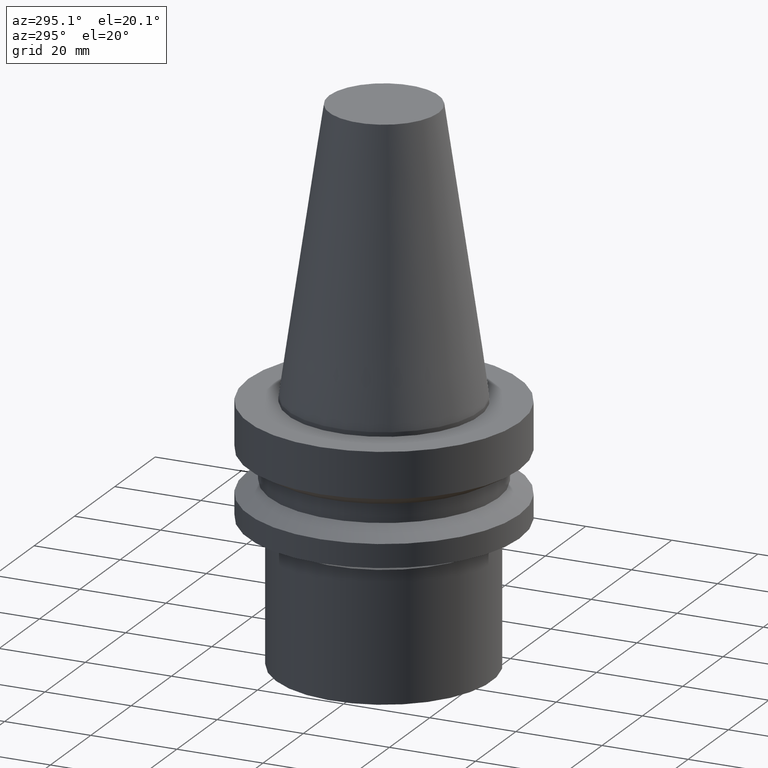
[diagram: clean part render]
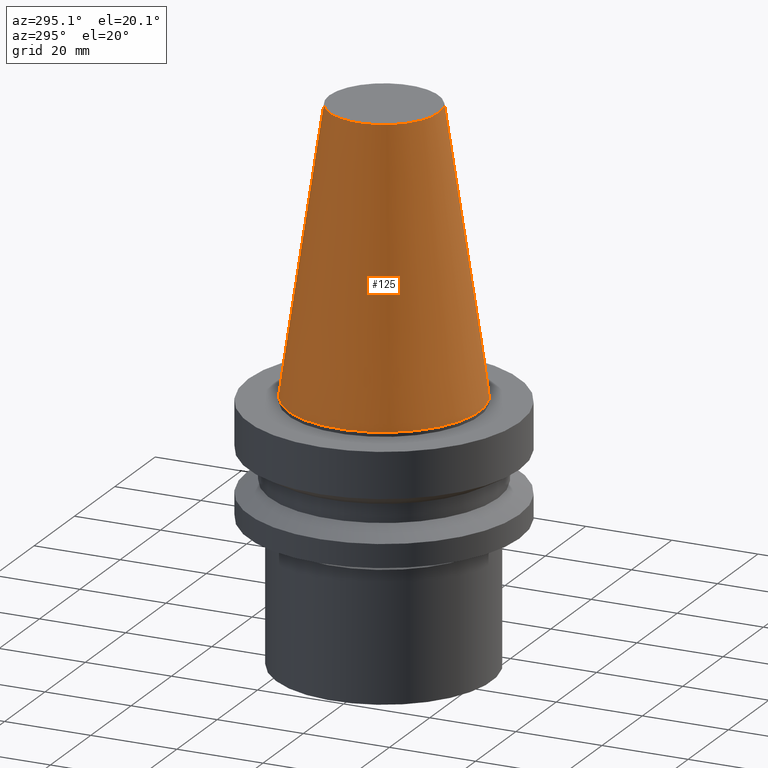
[diagram: same view with one face highlighted and labeled with its STEP entity id]
A machine part, auxiliary view. The second image highlights one B-rep face of the part: STEP entity #125.
In plain terms, the highlighted conical surface has half-angle 8.297 deg.
Its self-contained STEP definition (entity closure, byte-faithful):
#82=EDGE_CURVE('Unnamed[1]',#200,#200,#201,.T.);
#125=ADVANCED_FACE('Unnamed[1]',(#264,#265),#266,.T.);
#136=EDGE_CURVE('Unnamed[1]',#282,#282,#283,.T.);
#200=VERTEX_POINT('',#357);
#201=CIRCLE('',#358,12.6875000000001);
#264=FACE_BOUND('',#436,.T.);
#265=FACE_BOUND('',#437,.T.);
#266=CONICAL_SURFACE('',#438,17.4562500000001,0.144812498238936);
#282=VERTEX_POINT('',#459);
#283=CIRCLE('',#460,22.225);
#357=CARTESIAN_POINT('',(-4.00459503321185E-015,12.6875000000002,65.4000000000001));
#358=AXIS2_PLACEMENT_3D('',#528,#529,#530);
#436=EDGE_LOOP('',(#594));
#437=EDGE_LOOP('',(#595));
#438=AXIS2_PLACEMENT_3D('',#596,#597,#598);
#459=CARTESIAN_POINT('',(1.71319921032766E-029,22.2250000000001,-2.8153873565375E-013));
#460=AXIS2_PLACEMENT_3D('',#614,#615,#616);
#528=CARTESIAN_POINT('',(-4.00459503321185E-015,7.64121391453228E-014,65.4000000000001));
#529=DIRECTION('',(6.12323399573677E-017,-7.56206108338769E-016,-1.0));
#530=DIRECTION('',(4.14771167728707E-032,1.0,-7.56206108338769E-016));
#594=ORIENTED_EDGE('',*,*,#136,.F.);
#595=ORIENTED_EDGE('',*,*,#82,.T.);
#596=CARTESIAN_POINT('',(-2.00229751660592E-015,5.16841994026458E-014,32.6999999999999));
#597=DIRECTION('',(6.12323399573677E-017,-7.56206108338749E-016,-1.0));
#598=DIRECTION('',(4.14771167728666E-032,1.0,-7.56206108338749E-016));
#614=CARTESIAN_POINT('',(1.60980319096112E-029,2.69562596599688E-014,-2.62900812231237E-013));
#615=DIRECTION('',(6.12323399573677E-017,-7.56206108338737E-016,-1.0));
#616=DIRECTION('',(4.14771167728684E-032,1.0,-7.56206108338737E-016));